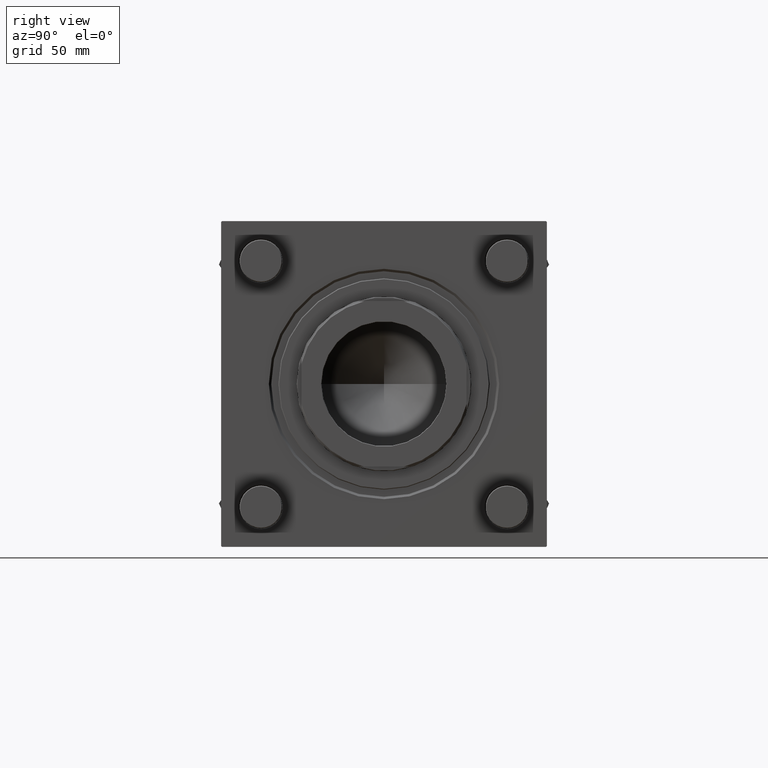
[diagram: clean part render]
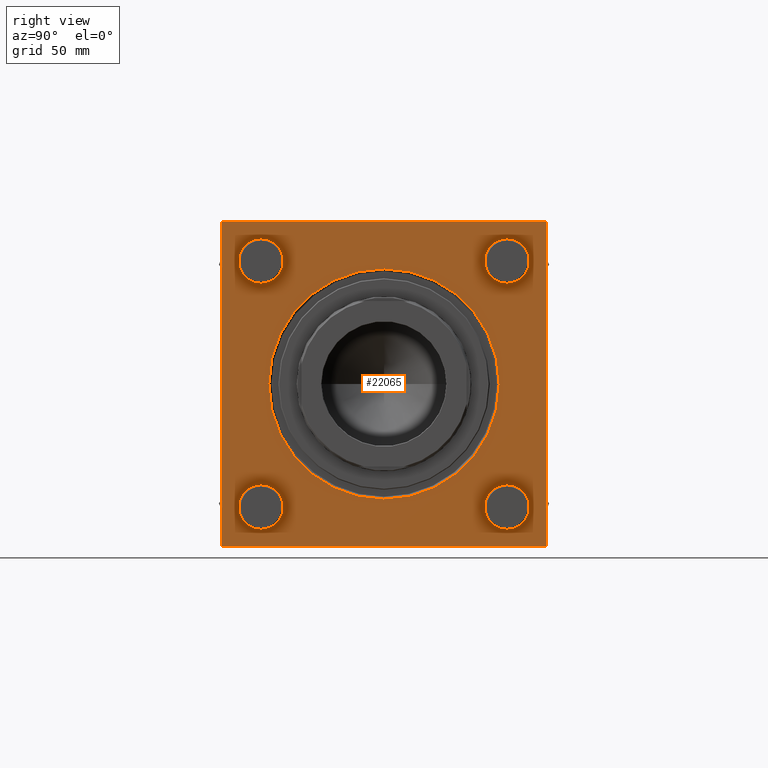
[diagram: same view with one face highlighted and labeled with its STEP entity id]
A machine part, right view. The second image highlights one B-rep face of the part: STEP entity #22065.
In plain terms, the highlighted planar face has unit normal (-1, 0, 0).
Its self-contained STEP definition (entity closure, byte-faithful):
#268 = CARTESIAN_POINT ( 'NONE',  ( 230.9999999999999716, -101.9999999999999289, -102.5000000000000284 ) ) ;
#865 = VECTOR ( 'NONE', #35038, 1000.000000000000114 ) ;
#1009 = LINE ( 'NONE', #40403, #22955 ) ;
#1116 = FACE_BOUND ( 'NONE', #27354, .T. ) ;
#1232 = VECTOR ( 'NONE', #43344, 1000.000000000000000 ) ;
#1578 = ORIENTED_EDGE ( 'NONE', *, *, #54989, .T. ) ;
#1935 = CARTESIAN_POINT ( 'NONE',  ( 230.9999999999999716, -102.4999999999999716, 102.4999999999999858 ) ) ;
#3174 = AXIS2_PLACEMENT_3D ( 'NONE', #50340, #15618, #37916 ) ;
#3922 = ORIENTED_EDGE ( 'NONE', *, *, #48838, .T. ) ;
#4434 = VECTOR ( 'NONE', #48503, 1000.000000000000000 ) ;
#4534 = DIRECTION ( 'NONE',  ( -1.000000000000000000, 0.000000000000000000, 0.000000000000000000 ) ) ;
#4545 = VERTEX_POINT ( 'NONE', #37002 ) ;
#4577 = VERTEX_POINT ( 'NONE', #28038 ) ;
#5181 = CARTESIAN_POINT ( 'NONE',  ( 230.9999999999999716, 0.000000000000000000, 0.000000000000000000 ) ) ;
#5600 = EDGE_CURVE ( 'NONE', #21466, #27200, #50698, .T. ) ;
#5809 = CIRCLE ( 'NONE', #21525, 14.00000000000001243 ) ;
#5935 = CIRCLE ( 'NONE', #3174, 14.00000000000001243 ) ;
#6284 = DIRECTION ( 'NONE',  ( 0.000000000000000000, -1.353930517835556727E-16, -1.000000000000000000 ) ) ;
#7306 = ORIENTED_EDGE ( 'NONE', *, *, #57128, .T. ) ;
#7830 = CARTESIAN_POINT ( 'NONE',  ( 230.9999999999999716, -77.44999999999996021, 91.45000000000004547 ) ) ;
#8814 = VERTEX_POINT ( 'NONE', #7830 ) ;
#8848 = EDGE_CURVE ( 'NONE', #39252, #38813, #39652, .T. ) ;
#8988 = ORIENTED_EDGE ( 'NONE', *, *, #38732, .T. ) ;
#9226 = PLANE ( 'NONE',  #24217 ) ;
#9247 = VERTEX_POINT ( 'NONE', #54874 ) ;
#9483 = DIRECTION ( 'NONE',  ( -1.000000000000000000, 0.000000000000000000, 0.000000000000000000 ) ) ;
#10777 = AXIS2_PLACEMENT_3D ( 'NONE', #13213, #4534, #49094 ) ;
#10937 = ORIENTED_EDGE ( 'NONE', *, *, #30629, .T. ) ;
#11083 = EDGE_CURVE ( 'NONE', #40092, #4577, #24028, .T. ) ;
#11353 = CARTESIAN_POINT ( 'NONE',  ( 230.9999999999999716, -102.5000000000000000, -102.0000000000000284 ) ) ;
#11368 = CARTESIAN_POINT ( 'NONE',  ( 230.9999999999999716, 102.0000000000000142, 102.5000000000000142 ) ) ;
#11441 = CIRCLE ( 'NONE', #17006, 14.00000000000001243 ) ;
#13158 = CIRCLE ( 'NONE', #48411, 72.50000000000001421 ) ;
#13213 = CARTESIAN_POINT ( 'NONE',  ( 230.9999999999999716, 77.44999999999998863, -77.45000000000001705 ) ) ;
#13542 = DIRECTION ( 'NONE',  ( 0.000000000000000000, 0.000000000000000000, 1.000000000000000000 ) ) ;
#13903 = CARTESIAN_POINT ( 'NONE',  ( 230.9999999999999716, -102.0000000000000568, 102.4999999999999858 ) ) ;
#14240 = CIRCLE ( 'NONE', #36446, 14.00000000000001243 ) ;
#14316 = ORIENTED_EDGE ( 'NONE', *, *, #40639, .F. ) ;
#14768 = VERTEX_POINT ( 'NONE', #37461 ) ;
#14887 = DIRECTION ( 'NONE',  ( 0.000000000000000000, 0.000000000000000000, -1.000000000000000000 ) ) ;
#15618 = DIRECTION ( 'NONE',  ( -1.000000000000000000, 0.000000000000000000, 0.000000000000000000 ) ) ;
#15685 = CARTESIAN_POINT ( 'NONE',  ( 230.9999999999999716, -77.44999999999996021, -91.45000000000004547 ) ) ;
#15847 = VERTEX_POINT ( 'NONE', #40452 ) ;
#17006 = AXIS2_PLACEMENT_3D ( 'NONE', #52955, #26344, #44002 ) ;
#17664 = ORIENTED_EDGE ( 'NONE', *, *, #11083, .T. ) ;
#18119 = LINE ( 'NONE', #26802, #4434 ) ;
#18783 = FACE_BOUND ( 'NONE', #24868, .T. ) ;
#19239 = DIRECTION ( 'NONE',  ( 0.000000000000000000, 0.000000000000000000, 1.000000000000000000 ) ) ;
#19659 = AXIS2_PLACEMENT_3D ( 'NONE', #22245, #27160, #44811 ) ;
#19953 = DIRECTION ( 'NONE',  ( -1.000000000000000000, 0.000000000000000000, 0.000000000000000000 ) ) ;
#20506 = LINE ( 'NONE', #38722, #1232 ) ;
#21466 = VERTEX_POINT ( 'NONE', #41282 ) ;
#21525 = AXIS2_PLACEMENT_3D ( 'NONE', #26921, #35627, #40254 ) ;
#22065 = ADVANCED_FACE ( 'NONE', ( #1116, #35883, #54081, #31528, #18783, #44841 ), #9226, .F. ) ;
#22245 = CARTESIAN_POINT ( 'NONE',  ( 230.9999999999999716, 77.44999999999998863, 77.45000000000001705 ) ) ;
#22848 = DIRECTION ( 'NONE',  ( 0.000000000000000000, 0.000000000000000000, 1.000000000000000000 ) ) ;
#22955 = VECTOR ( 'NONE', #14887, 1000.000000000000000 ) ;
#23777 = VERTEX_POINT ( 'NONE', #51298 ) ;
#24028 = LINE ( 'NONE', #42555, #38822 ) ;
#24217 = AXIS2_PLACEMENT_3D ( 'NONE', #5181, #45115, #22848 ) ;
#24613 = CARTESIAN_POINT ( 'NONE',  ( 230.9999999999999716, 77.44999999999998863, -91.45000000000003126 ) ) ;
#24868 = EDGE_LOOP ( 'NONE', ( #3922, #10937 ) ) ;
#25062 = CARTESIAN_POINT ( 'NONE',  ( 230.9999999999999716, 102.0000000000000142, 102.5000000000000142 ) ) ;
#25634 = ORIENTED_EDGE ( 'NONE', *, *, #52822, .T. ) ;
#26038 = EDGE_CURVE ( 'NONE', #39413, #15847, #20506, .T. ) ;
#26344 = DIRECTION ( 'NONE',  ( -1.000000000000000000, 0.000000000000000000, 0.000000000000000000 ) ) ;
#26480 = EDGE_LOOP ( 'NONE', ( #1578, #46783 ) ) ;
#26802 = CARTESIAN_POINT ( 'NONE',  ( 230.9999999999999716, 102.5000000000000142, -102.5000000000000142 ) ) ;
#26921 = CARTESIAN_POINT ( 'NONE',  ( 230.9999999999999716, -77.44999999999996021, -77.45000000000003126 ) ) ;
#27080 = DIRECTION ( 'NONE',  ( -1.000000000000000000, 0.000000000000000000, 0.000000000000000000 ) ) ;
#27160 = DIRECTION ( 'NONE',  ( -1.000000000000000000, 0.000000000000000000, 0.000000000000000000 ) ) ;
#27200 = VERTEX_POINT ( 'NONE', #15685 ) ;
#27354 = EDGE_LOOP ( 'NONE', ( #36782, #29483 ) ) ;
#27543 = DIRECTION ( 'NONE',  ( -1.000000000000000000, 0.000000000000000000, 0.000000000000000000 ) ) ;
#28038 = CARTESIAN_POINT ( 'NONE',  ( 230.9999999999999716, 102.5000000000000142, -101.9999999999999574 ) ) ;
#28564 = EDGE_CURVE ( 'NONE', #15847, #39252, #54335, .T. ) ;
#28565 = ORIENTED_EDGE ( 'NONE', *, *, #26038, .T. ) ;
#29058 = DIRECTION ( 'NONE',  ( -1.000000000000000000, 0.000000000000000000, 0.000000000000000000 ) ) ;
#29448 = CARTESIAN_POINT ( 'NONE',  ( 230.9999999999999716, 102.5000000000000142, 102.5000000000000142 ) ) ;
#29483 = ORIENTED_EDGE ( 'NONE', *, *, #5600, .T. ) ;
#29687 = DIRECTION ( 'NONE',  ( 0.000000000000000000, -0.7071067811865474617, 0.7071067811865474617 ) ) ;
#30186 = VERTEX_POINT ( 'NONE', #42043 ) ;
#30391 = AXIS2_PLACEMENT_3D ( 'NONE', #50443, #29058, #33399 ) ;
#30629 = EDGE_CURVE ( 'NONE', #36694, #30186, #35581, .T. ) ;
#30980 = CIRCLE ( 'NONE', #39285, 14.00000000000001243 ) ;
#31528 = FACE_BOUND ( 'NONE', #49099, .T. ) ;
#31696 = CIRCLE ( 'NONE', #19659, 14.00000000000001243 ) ;
#32736 = CARTESIAN_POINT ( 'NONE',  ( 230.9999999999999716, -77.44999999999996021, 77.45000000000003126 ) ) ;
#32813 = AXIS2_PLACEMENT_3D ( 'NONE', #40970, #27080, #19239 ) ;
#33399 = DIRECTION ( 'NONE',  ( 0.000000000000000000, 0.000000000000000000, 1.000000000000000000 ) ) ;
#34553 = VECTOR ( 'NONE', #29687, 1000.000000000000114 ) ;
#34926 = VERTEX_POINT ( 'NONE', #11368 ) ;
#35038 = DIRECTION ( 'NONE',  ( 0.000000000000000000, 0.7071067811865965336, -0.7071067811864985009 ) ) ;
#35581 = CIRCLE ( 'NONE', #32813, 72.50000000000001421 ) ;
#35627 = DIRECTION ( 'NONE',  ( -1.000000000000000000, 0.000000000000000000, 0.000000000000000000 ) ) ;
#35679 = ORIENTED_EDGE ( 'NONE', *, *, #36403, .T. ) ;
#35760 = CIRCLE ( 'NONE', #10777, 14.00000000000001243 ) ;
#35883 = FACE_BOUND ( 'NONE', #39846, .T. ) ;
#36403 = EDGE_CURVE ( 'NONE', #43292, #23777, #35760, .T. ) ;
#36446 = AXIS2_PLACEMENT_3D ( 'NONE', #49133, #9483, #13542 ) ;
#36694 = VERTEX_POINT ( 'NONE', #53651 ) ;
#36782 = ORIENTED_EDGE ( 'NONE', *, *, #50676, .T. ) ;
#36795 = DIRECTION ( 'NONE',  ( 0.000000000000000000, 0.000000000000000000, 1.000000000000000000 ) ) ;
#37002 = CARTESIAN_POINT ( 'NONE',  ( 230.9999999999999716, -77.44999999999996021, 63.45000000000001705 ) ) ;
#37404 = ORIENTED_EDGE ( 'NONE', *, *, #42016, .F. ) ;
#37414 = ORIENTED_EDGE ( 'NONE', *, *, #54260, .T. ) ;
#37461 = CARTESIAN_POINT ( 'NONE',  ( 230.9999999999999716, 77.44999999999998863, 91.45000000000003126 ) ) ;
#37898 = DIRECTION ( 'NONE',  ( 0.000000000000000000, 0.000000000000000000, 1.000000000000000000 ) ) ;
#37916 = DIRECTION ( 'NONE',  ( 0.000000000000000000, 0.000000000000000000, 1.000000000000000000 ) ) ;
#38722 = CARTESIAN_POINT ( 'NONE',  ( 230.9999999999999716, -102.4999999999999716, 102.0000000000000284 ) ) ;
#38732 = EDGE_CURVE ( 'NONE', #34926, #39413, #46801, .T. ) ;
#38813 = VERTEX_POINT ( 'NONE', #56898 ) ;
#38822 = VECTOR ( 'NONE', #55556, 1000.000000000000114 ) ;
#39252 = VERTEX_POINT ( 'NONE', #11353 ) ;
#39285 = AXIS2_PLACEMENT_3D ( 'NONE', #32736, #27543, #36795 ) ;
#39413 = VERTEX_POINT ( 'NONE', #13903 ) ;
#39534 = ORIENTED_EDGE ( 'NONE', *, *, #55255, .T. ) ;
#39652 = LINE ( 'NONE', #268, #865 ) ;
#39846 = EDGE_LOOP ( 'NONE', ( #35679, #37414 ) ) ;
#40092 = VERTEX_POINT ( 'NONE', #53692 ) ;
#40254 = DIRECTION ( 'NONE',  ( 0.000000000000000000, 0.000000000000000000, 1.000000000000000000 ) ) ;
#40403 = CARTESIAN_POINT ( 'NONE',  ( 230.9999999999999716, 102.5000000000000142, 102.5000000000000142 ) ) ;
#40452 = CARTESIAN_POINT ( 'NONE',  ( 230.9999999999999716, -102.4999999999999716, 102.0000000000000284 ) ) ;
#40639 = EDGE_CURVE ( 'NONE', #40092, #38813, #18119, .T. ) ;
#40970 = CARTESIAN_POINT ( 'NONE',  ( 230.9999999999999716, 0.000000000000000000, 0.000000000000000000 ) ) ;
#41282 = CARTESIAN_POINT ( 'NONE',  ( 230.9999999999999716, -77.44999999999996021, -63.45000000000001705 ) ) ;
#42016 = EDGE_CURVE ( 'NONE', #42802, #4577, #1009, .T. ) ;
#42043 = CARTESIAN_POINT ( 'NONE',  ( 230.9999999999999716, 0.000000000000000000, -72.50000000000001421 ) ) ;
#42555 = CARTESIAN_POINT ( 'NONE',  ( 230.9999999999999716, 102.5000000000000142, -101.9999999999999574 ) ) ;
#42802 = VERTEX_POINT ( 'NONE', #53623 ) ;
#43292 = VERTEX_POINT ( 'NONE', #24613 ) ;
#43344 = DIRECTION ( 'NONE',  ( -0.000000000000000000, -0.7071067811865181518, -0.7071067811865769936 ) ) ;
#44002 = DIRECTION ( 'NONE',  ( 0.000000000000000000, 0.000000000000000000, 1.000000000000000000 ) ) ;
#44811 = DIRECTION ( 'NONE',  ( 0.000000000000000000, 0.000000000000000000, 1.000000000000000000 ) ) ;
#44841 = FACE_OUTER_BOUND ( 'NONE', #48367, .T. ) ;
#45115 = DIRECTION ( 'NONE',  ( -1.000000000000000000, 0.000000000000000000, 0.000000000000000000 ) ) ;
#45697 = EDGE_CURVE ( 'NONE', #14768, #9247, #31696, .T. ) ;
#46567 = CARTESIAN_POINT ( 'NONE',  ( 230.9999999999999716, 0.000000000000000000, 0.000000000000000000 ) ) ;
#46783 = ORIENTED_EDGE ( 'NONE', *, *, #45697, .T. ) ;
#46801 = LINE ( 'NONE', #29448, #49525 ) ;
#47643 = DIRECTION ( 'NONE',  ( 0.000000000000000000, -1.000000000000000000, -1.353930517835556973E-16 ) ) ;
#48367 = EDGE_LOOP ( 'NONE', ( #53324, #57160, #14316, #17664, #37404, #25634, #8988, #28565 ) ) ;
#48411 = AXIS2_PLACEMENT_3D ( 'NONE', #46567, #19953, #37898 ) ;
#48454 = VECTOR ( 'NONE', #6284, 1000.000000000000000 ) ;
#48503 = DIRECTION ( 'NONE',  ( 0.000000000000000000, -1.000000000000000000, -1.353930517835556727E-16 ) ) ;
#48838 = EDGE_CURVE ( 'NONE', #30186, #36694, #13158, .T. ) ;
#49094 = DIRECTION ( 'NONE',  ( 0.000000000000000000, 0.000000000000000000, 1.000000000000000000 ) ) ;
#49099 = EDGE_LOOP ( 'NONE', ( #7306, #39534 ) ) ;
#49133 = CARTESIAN_POINT ( 'NONE',  ( 230.9999999999999716, -77.44999999999996021, 77.45000000000003126 ) ) ;
#49525 = VECTOR ( 'NONE', #47643, 1000.000000000000000 ) ;
#50340 = CARTESIAN_POINT ( 'NONE',  ( 230.9999999999999716, 77.44999999999998863, 77.45000000000001705 ) ) ;
#50443 = CARTESIAN_POINT ( 'NONE',  ( 230.9999999999999716, -77.44999999999996021, -77.45000000000003126 ) ) ;
#50676 = EDGE_CURVE ( 'NONE', #27200, #21466, #5809, .T. ) ;
#50698 = CIRCLE ( 'NONE', #30391, 14.00000000000001243 ) ;
#51298 = CARTESIAN_POINT ( 'NONE',  ( 230.9999999999999716, 77.44999999999998863, -63.45000000000000284 ) ) ;
#52822 = EDGE_CURVE ( 'NONE', #42802, #34926, #56284, .T. ) ;
#52955 = CARTESIAN_POINT ( 'NONE',  ( 230.9999999999999716, 77.44999999999998863, -77.45000000000001705 ) ) ;
#53324 = ORIENTED_EDGE ( 'NONE', *, *, #28564, .T. ) ;
#53623 = CARTESIAN_POINT ( 'NONE',  ( 230.9999999999999716, 102.5000000000000142, 102.0000000000000142 ) ) ;
#53651 = CARTESIAN_POINT ( 'NONE',  ( 230.9999999999999716, 8.878689293818310863E-15, 72.50000000000001421 ) ) ;
#53692 = CARTESIAN_POINT ( 'NONE',  ( 230.9999999999999716, 101.9999999999999574, -102.5000000000000142 ) ) ;
#54081 = FACE_BOUND ( 'NONE', #26480, .T. ) ;
#54260 = EDGE_CURVE ( 'NONE', #23777, #43292, #11441, .T. ) ;
#54335 = LINE ( 'NONE', #1935, #48454 ) ;
#54874 = CARTESIAN_POINT ( 'NONE',  ( 230.9999999999999716, 77.44999999999998863, 63.45000000000000284 ) ) ;
#54989 = EDGE_CURVE ( 'NONE', #9247, #14768, #5935, .T. ) ;
#55255 = EDGE_CURVE ( 'NONE', #8814, #4545, #14240, .T. ) ;
#55556 = DIRECTION ( 'NONE',  ( -0.000000000000000000, 0.7071067811865474617, 0.7071067811865474617 ) ) ;
#56284 = LINE ( 'NONE', #25062, #34553 ) ;
#56898 = CARTESIAN_POINT ( 'NONE',  ( 230.9999999999999716, -101.9999999999999289, -102.5000000000000284 ) ) ;
#57128 = EDGE_CURVE ( 'NONE', #4545, #8814, #30980, .T. ) ;
#57160 = ORIENTED_EDGE ( 'NONE', *, *, #8848, .T. ) ;